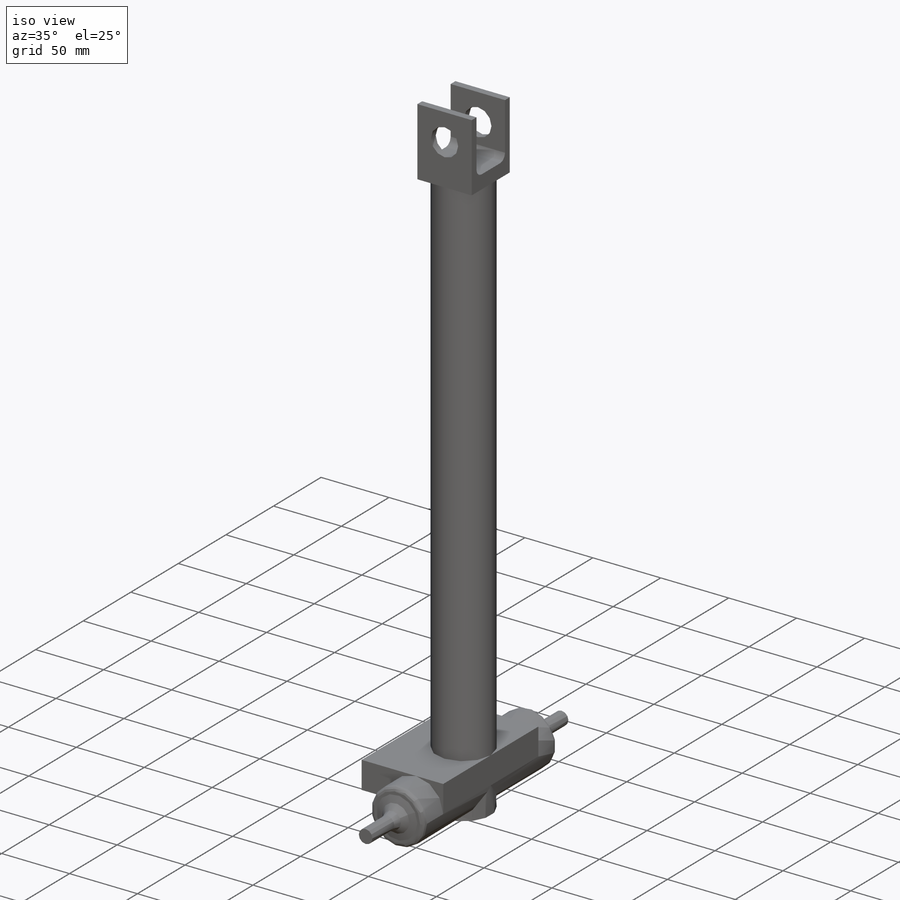
[diagram: iso view]
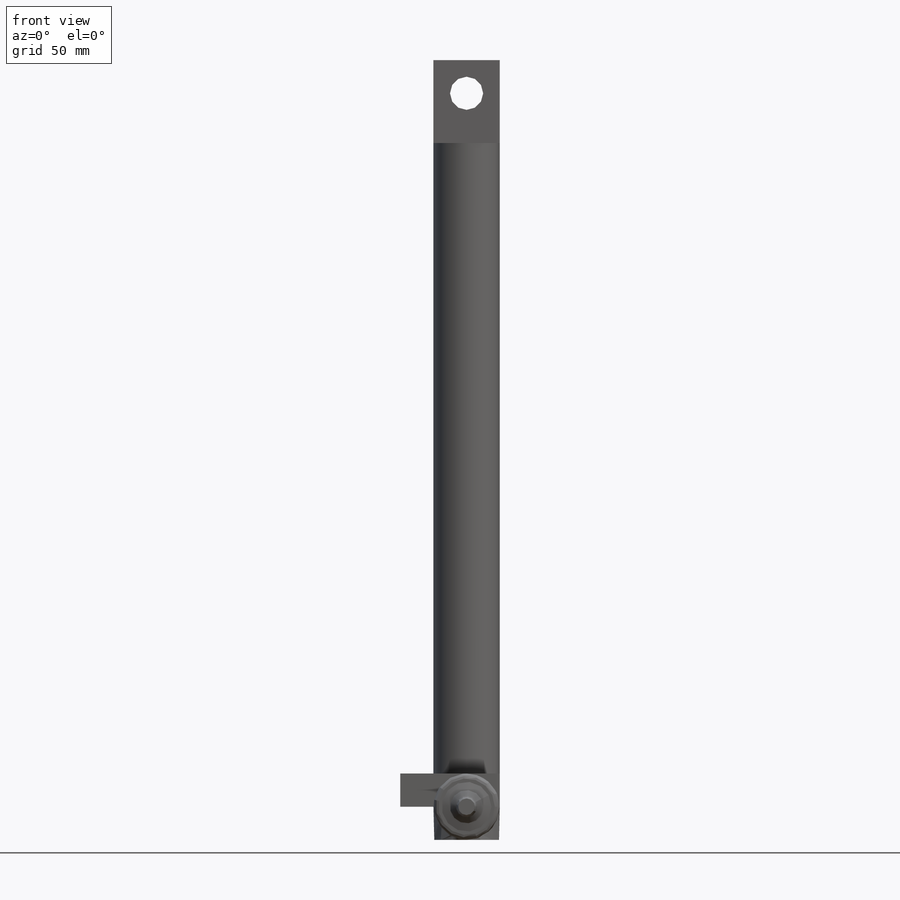
[diagram: front view]
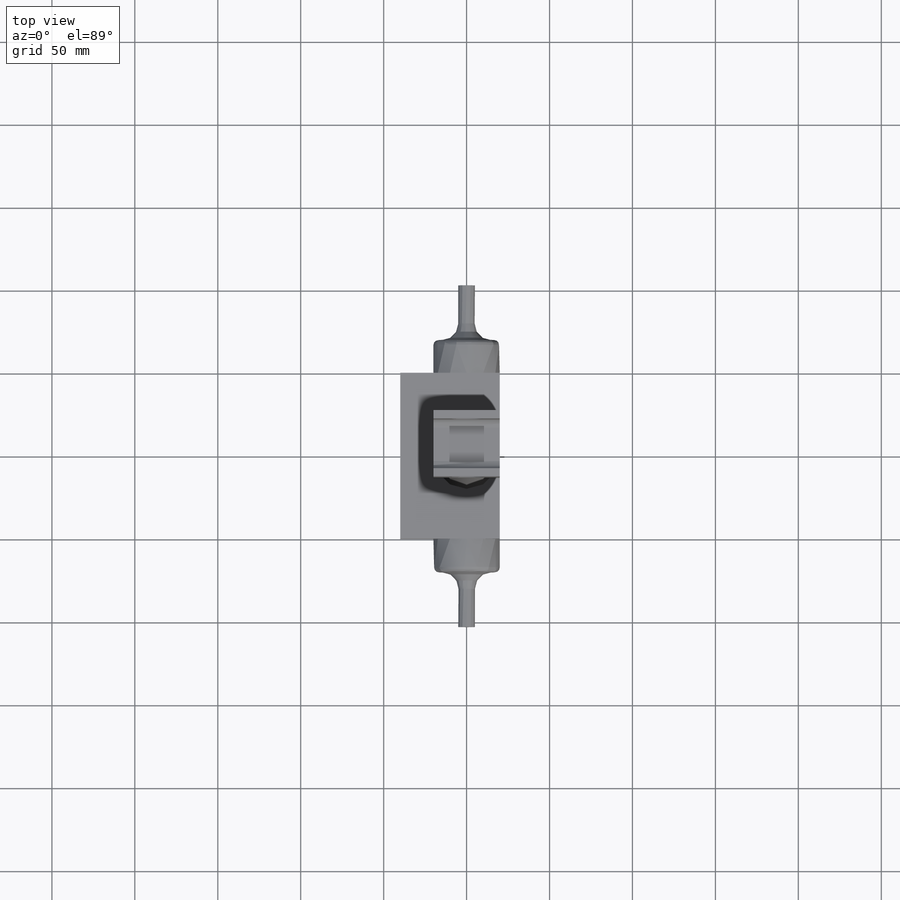
[diagram: top view]
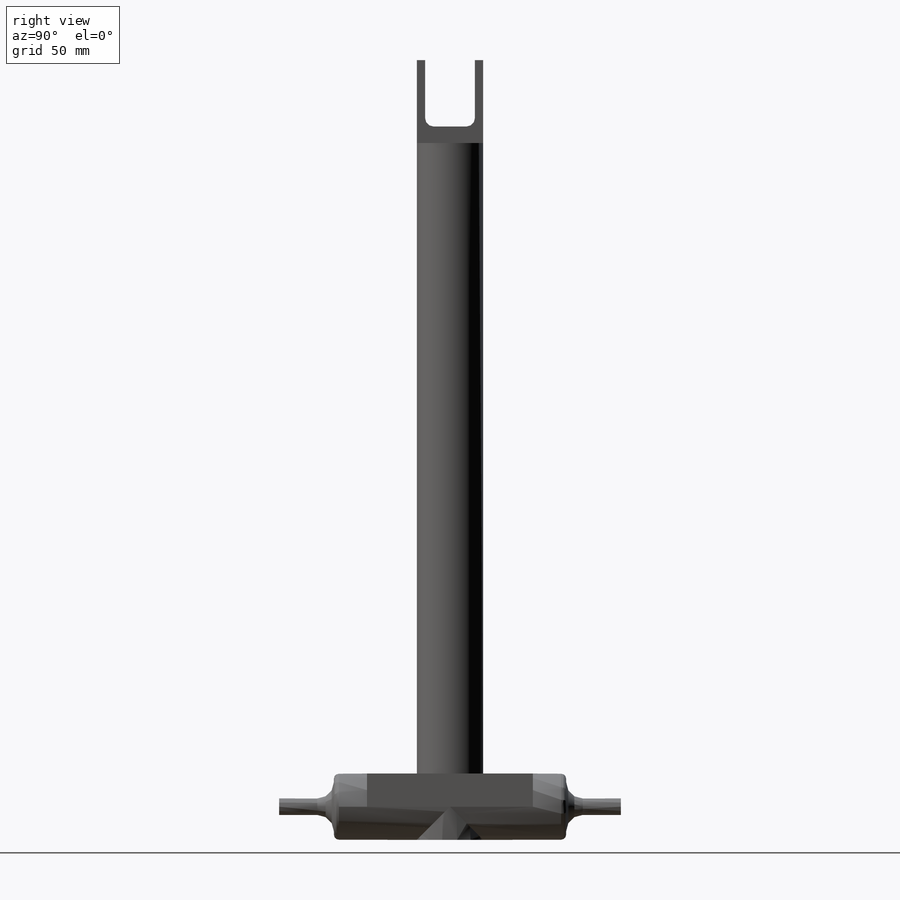
[diagram: right view]
SOLIDWORKS PART (.sldprt)
format: sldprt  version: not decoded by parser v0  size: 468,992 bytes
history: native  units: mm
features: sketch x10, extrude x9, fillet x4, material x1, cut_extrude x1, plane x1 (+14 scaffold rows collapsed)
feature tree (40):
  scaffold x14  (default folders/planes/origin — collapsed)
  material  "Titanium"
  sketch  "Sketch2"  dims[D2=40.0mm D1=10.0mm]
  extrude  "Extrude1"  Depth=420.09mm
  sketch  "Sketch3"  dims[D2=40.0mm D1=20.0mm D3=20.0mm D4=5.0mm]
  extrude  "Extrude2"  Depth=60mm
  sketch  "Sketch4"
  extrude  "Extrude3"  Depth=10mm
  sketch  "Sketch5"
  extrude  "Extrude4"  Depth=10mm
  sketch  "Sketch6"  dims[D1=10.0mm]
  extrude  "Extrude5"  Depth=33mm
  sketch  "Sketch7"  dims[D1=10.0mm]
  extrude  "Extrude6"  Depth=33mm
  sketch  "Sketch8"
  extrude  "Extrude7"  Depth=10mm
  sketch  "Sketch9"  dims[D1=5.0mm D2=5.0mm]
  extrude  "Extrude8"  Depth=40mm
  sketch  "Sketch10"  dims[D2=20.0mm D1=20.0mm]
  cut_extrude  "Cut-Extrude1"  [1 undecoded]
  fillet  "Fillet1"  Radius=3mm
  fillet  "Fillet2"  Radius=3mm
  plane  "Plane1"  Offset=40mm
  sketch  "Sketch11"  dims[D1=50.0mm D2=50.0mm D3=60.0mm]
  extrude  "Extrude9"  Depth=20mm
  fillet  "Fillet3"  Radius=10mm
  fillet  "Fillet4"  Radius=5mm
decode coverage: 20 of 24 modeling features carry decoded parameters
note: 1 parameter value undecoded
note: suppression state not decoded; provenance and decode notes live in map.json
